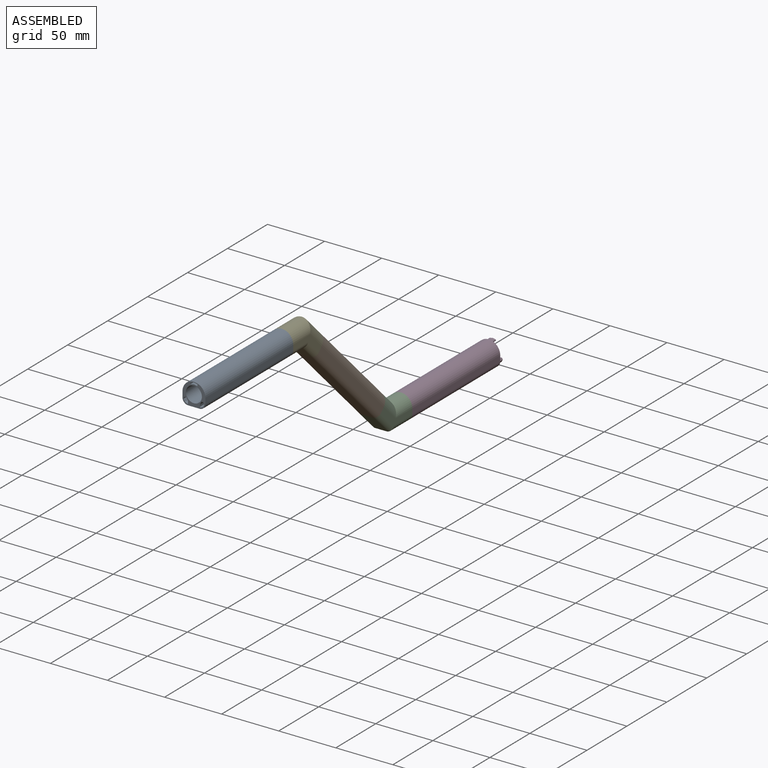
[diagram: assembled view]
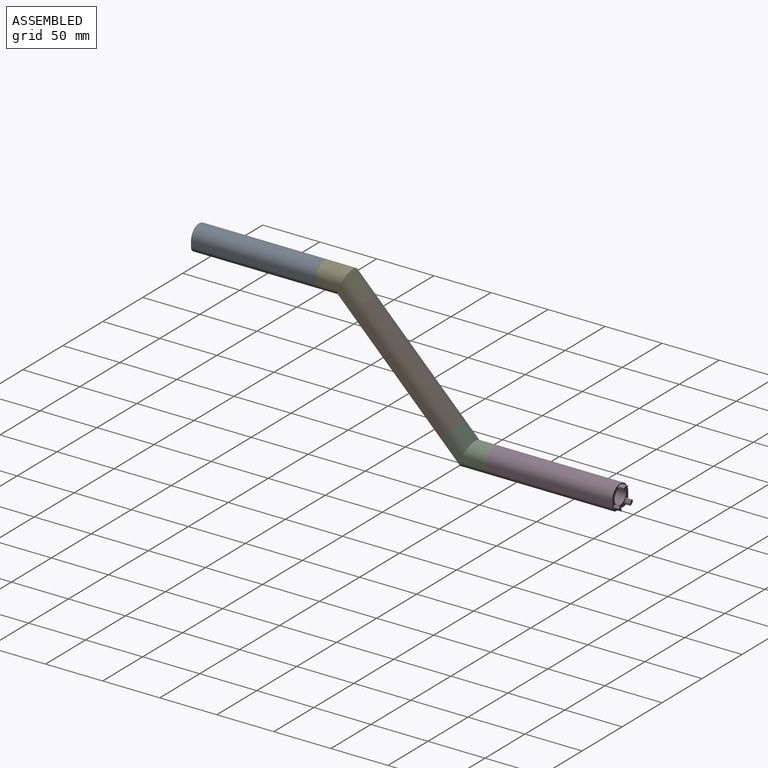
[diagram: assembled view, second angle]
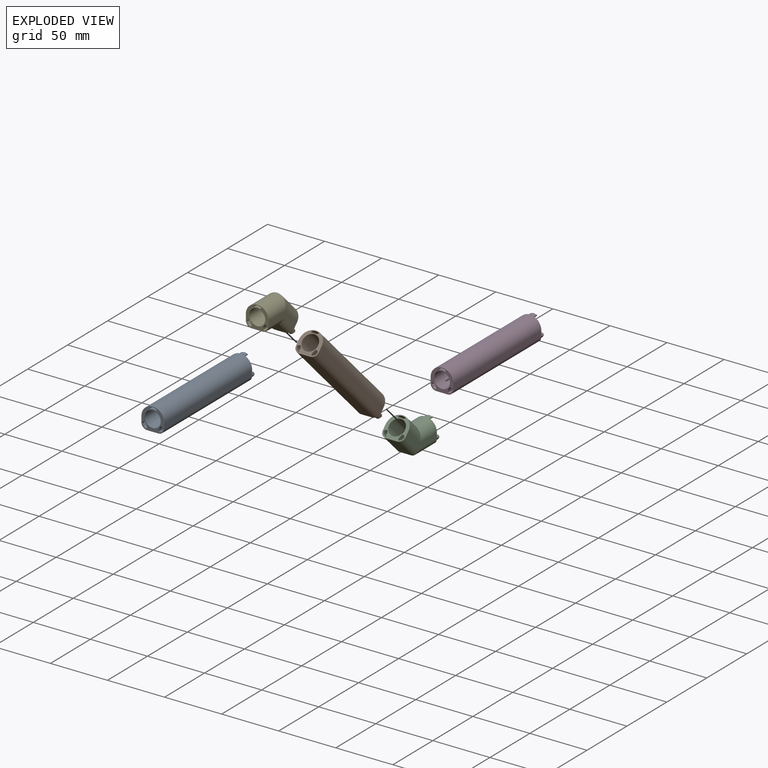
[diagram: exploded view]
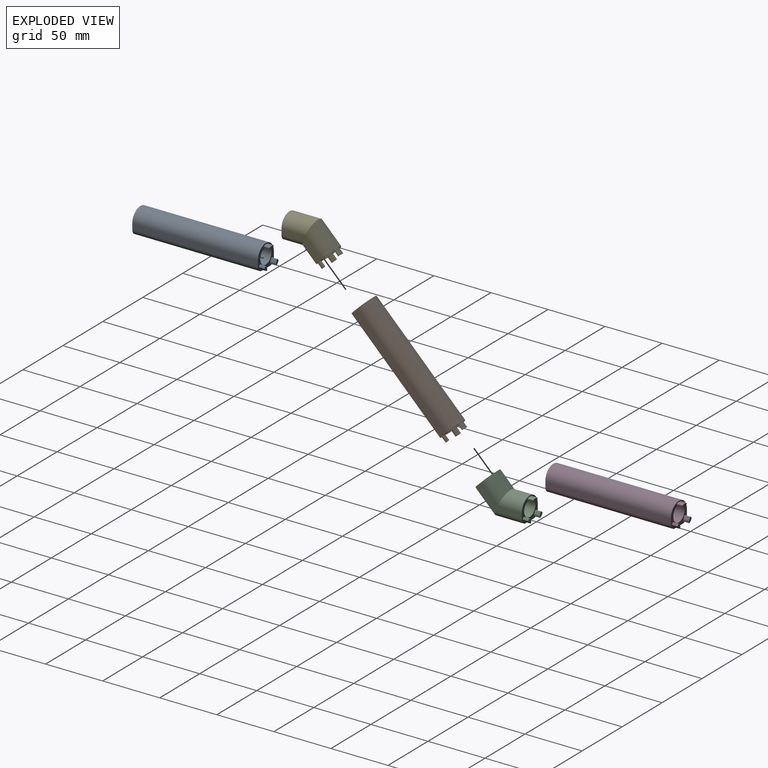
[diagram: exploded view, second angle]
ASSEMBLY  parts=5 mates=4
PART A: 59 faces, bbox 20x115x20 mm
  f0: plane 20x20mm, normal (0,1,0), area 169.7mm2, adj f2,f3,f4,f5,f6,f7,f8,f34
  f1: plane 20x20mm, normal (0,-1,0), area 157.8mm2, adj f2,f3,f4,f5,f6,f7,f8,f9
  f2: plane 110x5mm, normal (-1,0,0), area 550mm2, adj f0,f1,f5,f7
  f3: plane 110x10mm, normal (0,0,-1), area 1100mm2, adj f0,f1,f7,f8
  f4: plane 110x5mm, normal (1,0,0), area 550mm2, adj f0,f1,f5,f8
  f5: cylinder r=10mm len=110mm, axis (0,1,0), area 3455.8mm2, adj f0,f1,f2,f4
  f6: cylinder r=7mm len=110mm, axis (0,1,0), area 4838.1mm2, adj f0,f1
  f7: cylinder r=5mm len=110mm, axis (0,1,0), area 863.9mm2, adj f0,f1,f2,f3
  f8: cylinder r=5mm len=110mm, axis (0,-1,0), area 863.9mm2, adj f0,f1,f3,f4
  f9: cylinder r=0.62mm len=5mm, axis (0,-1,0), area 1.4mm2, adj f1,f10,f16,f17
  f10: plane 5x2.86mm, normal (0.22,0,0.98), area 14.7mm2, adj f1,f9,f11,f17
  f11: plane 5x1.5mm, normal (-1,0,0), area 7.5mm2, adj f1,f10,f12,f17
  f12: plane 5x2.86mm, normal (-0.22,0,-0.98), area 14.7mm2, adj f1,f11,f13,f17
  f13: cylinder r=0.62mm len=5mm, axis (0,-1,0), area 1.4mm2, adj f1,f12,f14,f17
  f14: plane 5x2.86mm, normal (0.22,0,-0.98), area 14.7mm2, adj f1,f13,f15,f17
  f15: plane 5x1.5mm, normal (1,0,0), area 7.5mm2, adj f1,f14,f16,f17
  f16: plane 5x2.86mm, normal (-0.22,0,0.98), area 14.7mm2, adj f1,f9,f15,f17
  f17: plane 6x2.16mm, normal (0,-1,0), area 9mm2, adj f9,f10,f11,f12,f13,f14,f15,f16
  f18: plane 5x1.79mm, normal (-0.45,0,0.89), area 10mm2, adj f1,f19,f24,f25
  f19: plane 5x2.17mm, normal (-0.87,0,0.5), area 12.5mm2, adj f1,f18,f20,f25
  f20: plane 5x1.69mm, normal (-0.88,0,-0.48), area 9.7mm2, adj f1,f19,f21,f25
  f21: plane 5x1.68mm, normal (0,0,-1), area 8.4mm2, adj f1,f20,f22,f25
  f22: plane 5x2.7mm, normal (0.9,0,-0.44), area 15mm2, adj f1,f21,f23,f25
  f23: plane 5x1.5mm, normal (1,0,0), area 7.5mm2, adj f1,f22,f24,f25
  f24: cylinder r=0.62mm len=5mm, axis (0,-1,0), area 6.3mm2, adj f1,f18,f23,f25
  f25: plane 4.82x3.93mm, normal (0,-1,0), area 12.8mm2, adj f18,f19,f20,f21,f22,f23,f24
  f26: plane 5x1.69mm, normal (0.88,0,-0.48), area 9.7mm2, adj f1,f27,f32,f33
  f27: plane 5x2.17mm, normal (0.87,0,0.5), area 12.5mm2, adj f1,f26,f28,f33
  f28: plane 5x1.79mm, normal (0.45,0,0.89), area 10mm2, adj f1,f27,f29,f33
  f29: cylinder r=0.62mm len=5mm, axis (0,-1,0), area 6.3mm2, adj f1,f28,f30,f33
  f30: plane 5x1.5mm, normal (-1,0,0), area 7.5mm2, adj f1,f29,f31,f33
  f31: plane 5x2.7mm, normal (-0.9,0,-0.44), area 15mm2, adj f1,f30,f32,f33
  f32: plane 5x1.68mm, normal (0,0,-1), area 8.4mm2, adj f1,f26,f31,f33
  f33: plane 4.82x3.93mm, normal (0,-1,0), area 12.8mm2, adj f26,f27,f28,f29,f30,f31,f32
  f34: plane 5x1.71mm, normal (0.45,0,-0.89), area 9.6mm2, adj f0,f35,f40,f41
  f35: cylinder r=0.32mm len=5mm, axis (0,-1,0), area 3.2mm2, adj f0,f34,f36,f41
  f36: plane 5x1.43mm, normal (-1,0,0), area 7.2mm2, adj f0,f35,f37,f41
  f37: plane 5x2.47mm, normal (-0.9,0,0.44), area 13.7mm2, adj f0,f36,f38,f41
  f38: plane 5x1.32mm, normal (0,0,1), area 6.6mm2, adj f0,f37,f39,f41
  f39: plane 5x1.39mm, normal (0.88,0,0.48), area 7.9mm2, adj f0,f38,f40,f41
  f40: plane 5x1.94mm, normal (0.87,0,-0.5), area 11.2mm2, adj f0,f34,f39,f41
  f41: plane 4.22x3.29mm, normal (0,1,0), area 9mm2, adj f34,f35,f36,f37,f38,f39,f40
  f42: plane 5x1.39mm, normal (-0.88,0,0.48), area 7.9mm2, adj f0,f43,f48,f49
  f43: plane 5x1.32mm, normal (0,0,1), area 6.6mm2, adj f0,f42,f44,f49
  f44: plane 5x2.47mm, normal (0.9,0,0.44), area 13.7mm2, adj f0,f43,f45,f49
  f45: plane 5x1.43mm, normal (1,0,0), area 7.2mm2, adj f0,f44,f46,f49
  f46: cylinder r=0.32mm len=5mm, axis (0,-1,0), area 3.2mm2, adj f0,f45,f47,f49
  f47: plane 5x1.71mm, normal (-0.45,0,-0.89), area 9.6mm2, adj f0,f46,f48,f49
  f48: plane 5x1.94mm, normal (-0.87,0,-0.5), area 11.2mm2, adj f0,f42,f47,f49
  f49: plane 4.22x3.29mm, normal (0,1,0), area 9mm2, adj f42,f43,f44,f45,f46,f47,f48
  f50: plane 5x2.5mm, normal (0.22,0,-0.98), area 12.8mm2, adj f0,f51,f57,f58
  f51: plane 5x0.89mm, normal (-1,0,0), area 4.4mm2, adj f0,f50,f52,f58
  f52: plane 5x2.63mm, normal (-0.22,0,0.98), area 13.5mm2, adj f0,f51,f53,f58
  f53: cylinder r=0.32mm len=5mm, axis (0,-1,0), area 0.7mm2, adj f0,f52,f54,f58
  f54: plane 5x2.63mm, normal (0.22,0,0.98), area 13.5mm2, adj f0,f53,f55,f58
  f55: plane 5x0.89mm, normal (1,0,0), area 4.4mm2, adj f0,f54,f56,f58
  f56: plane 5x2.5mm, normal (-0.22,0,-0.98), area 12.8mm2, adj f0,f55,f57,f58
  f57: cylinder r=0.92mm len=5mm, axis (0,-1,0), area 2mm2, adj f0,f50,f56,f58
  f58: plane 5.4x1.49mm, normal (0,1,0), area 4.8mm2, adj f50,f51,f52,f53,f54,f55,f56,f57
PART B: same geometry as A
PART C: 64 faces, bbox 20x45.2x34.8 mm
  f0: plane 20x14.14mm, normal (0,-0.71,0.71), area 169.7mm2, adj f2,f4,f5,f7,f9,f11,f12,f39
  f1: plane 20x20mm, normal (0,1,0), area 157.7mm2, adj f3,f4,f5,f6,f8,f10,f13,f14
  f2: plane 17.68x17.68mm, normal (0,-0.71,-0.71), area 250mm2, adj f0,f3,f7,f9
  f3: plane 25x10mm, normal (0,0,-1), area 250mm2, adj f1,f2,f6,f8
  f4: plane 39.14x19.75mm, normal (1,0,0), area 218.9mm2, adj f0,f1,f8,f9,f10,f11
  f5: plane 39.14x19.75mm, normal (-1,0,0), area 218.9mm2, adj f0,f1,f6,f7,f10,f11
  f6: cylinder r=5mm len=25mm, axis (0,1,0), area 190.4mm2, adj f1,f3,f5,f7
  f7: cylinder r=5mm len=21.21mm, axis (0,0.71,-0.71), area 190.4mm2, adj f0,f2,f5,f6
  f8: cylinder r=5mm len=25mm, axis (0,-1,0), area 190.4mm2, adj f1,f3,f4,f9
  f9: cylinder r=5mm len=21.21mm, axis (0,-0.71,0.71), area 190.4mm2, adj f0,f2,f4,f8
  f10: cylinder r=10mm len=20.86mm, axis (0,1,0), area 572.4mm2, adj f1,f4,f5,f11
  f11: cylinder r=10mm len=21.82mm, axis (0,0.71,-0.71), area 572.4mm2, adj f0,f4,f5,f10
  f12: cylinder r=7mm len=26.73mm, axis (0,0.71,-0.71), area 917.4mm2, adj f0,f13
  f13: cylinder r=7mm len=23.8mm, axis (0,1,0), area 917.4mm2, adj f1,f12
  f14: plane 5x1.5mm, normal (-1,0,0), area 7.5mm2, adj f1,f15,f21,f22
  f15: plane 5x2.88mm, normal (0.22,0,0.98), area 14.8mm2, adj f1,f14,f16,f22
  f16: cylinder r=0.62mm len=5mm, axis (0,1,0), area 1.4mm2, adj f1,f15,f17,f22
  f17: plane 5x2.88mm, normal (-0.22,0,0.98), area 14.8mm2, adj f1,f16,f18,f22
  f18: plane 5x1.5mm, normal (1,0,0), area 7.5mm2, adj f1,f17,f19,f22
  f19: plane 5x2.88mm, normal (0.22,0,-0.98), area 14.8mm2, adj f1,f18,f20,f22
  f20: cylinder r=0.62mm len=5mm, axis (0,1,0), area 1.4mm2, adj f1,f19,f21,f22
  f21: plane 5x2.88mm, normal (-0.22,0,-0.98), area 14.8mm2, adj f1,f14,f20,f22
  f22: plane 6.04x2.16mm, normal (0,1,0), area 9.1mm2, adj f14,f15,f16,f17,f18,f19,f20,f21
  f23: plane 5x1.5mm, normal (1,0,0), area 7.5mm2, adj f1,f24,f29,f30
  f24: plane 5x2.7mm, normal (0.9,0,-0.44), area 15mm2, adj f1,f23,f25,f30
  f25: plane 5x1.68mm, normal (0,0,-1), area 8.4mm2, adj f1,f24,f26,f30
  f26: plane 5x1.69mm, normal (-0.88,0,-0.48), area 9.7mm2, adj f1,f25,f27,f30
  f27: plane 5x2.17mm, normal (-0.87,0,0.5), area 12.5mm2, adj f1,f26,f28,f30
  f28: plane 5x1.79mm, normal (-0.45,0,0.89), area 10mm2, adj f1,f27,f29,f30
  f29: cylinder r=0.62mm len=5mm, axis (0,1,0), area 6.3mm2, adj f1,f23,f28,f30
  f30: plane 4.82x3.93mm, normal (0,1,0), area 12.8mm2, adj f23,f24,f25,f26,f27,f28,f29
  f31: plane 5x1.68mm, normal (0,0,-1), area 8.4mm2, adj f1,f32,f37,f38
  f32: plane 5x2.7mm, normal (-0.9,0,-0.44), area 15mm2, adj f1,f31,f33,f38
  f33: plane 5x1.5mm, normal (-1,0,0), area 7.5mm2, adj f1,f32,f34,f38
  f34: cylinder r=0.62mm len=5mm, axis (0,1,0), area 6.3mm2, adj f1,f33,f35,f38
  f35: plane 5x1.79mm, normal (0.45,0,0.89), area 10mm2, adj f1,f34,f36,f38
  f36: plane 5x2.17mm, normal (0.87,0,0.5), area 12.5mm2, adj f1,f35,f37,f38
  f37: plane 5x1.69mm, normal (0.88,0,-0.48), area 9.7mm2, adj f1,f31,f36,f38
  f38: plane 4.82x3.93mm, normal (0,1,0), area 12.8mm2, adj f31,f32,f33,f34,f35,f36,f37
  f39: plane 4.14x4.14mm, normal (-0.45,-0.63,-0.63), area 9.6mm2, adj f0,f40,f45,f46
  f40: cylinder r=0.32mm len=3.76mm, axis (0,0.71,-0.71), area 3.2mm2, adj f0,f39,f41,f46
  f41: plane 4.55x4.55mm, normal (1,0,0), area 7.2mm2, adj f0,f40,f42,f46
  f42: plane 5.28x5.28mm, normal (0.9,0.31,0.31), area 13.7mm2, adj f0,f41,f43,f46
  f43: plane 3.54x3.54mm, normal (0,0.71,0.71), area 6.6mm2, adj f0,f42,f44,f46
  f44: plane 4.52x4.52mm, normal (-0.88,0.34,0.34), area 7.9mm2, adj f0,f43,f45,f46
  f45: plane 4.91x4.91mm, normal (-0.87,-0.35,-0.35), area 11.2mm2, adj f0,f39,f44,f46
  f46: plane 3.29x2.98mm, normal (0,-0.71,0.71), area 9mm2, adj f39,f40,f41,f42,f43,f44,f45
  f47: plane 4.52x4.52mm, normal (0.88,0.34,0.34), area 7.9mm2, adj f0,f48,f53,f54
  f48: plane 3.54x3.54mm, normal (0,0.71,0.71), area 6.6mm2, adj f0,f47,f49,f54
  f49: plane 5.28x5.28mm, normal (-0.9,0.31,0.31), area 13.7mm2, adj f0,f48,f50,f54
  f50: plane 4.55x4.55mm, normal (-1,0,0), area 7.2mm2, adj f0,f49,f51,f54
  f51: cylinder r=0.32mm len=3.76mm, axis (0,0.71,-0.71), area 3.2mm2, adj f0,f50,f52,f54
  f52: plane 4.14x4.14mm, normal (0.45,-0.63,-0.63), area 9.6mm2, adj f0,f51,f53,f54
  f53: plane 4.91x4.91mm, normal (0.87,-0.35,-0.35), area 11.2mm2, adj f0,f47,f52,f54
  f54: plane 3.29x2.98mm, normal (0,-0.71,0.71), area 9mm2, adj f47,f48,f49,f50,f51,f52,f53
  f55: plane 3.93x3.93mm, normal (-0.22,-0.69,-0.69), area 12.8mm2, adj f0,f56,f62,f63
  f56: plane 4.16x4.16mm, normal (1,0,0), area 4.4mm2, adj f0,f55,f57,f63
  f57: plane 3.95x3.95mm, normal (0.22,0.69,0.69), area 13.5mm2, adj f0,f56,f58,f63
  f58: cylinder r=0.32mm len=3.54mm, axis (0,0.71,-0.71), area 0.7mm2, adj f0,f57,f59,f63
  f59: plane 3.95x3.95mm, normal (-0.22,0.69,0.69), area 13.5mm2, adj f0,f58,f60,f63
  f60: plane 4.16x4.16mm, normal (-1,0,0), area 4.4mm2, adj f0,f59,f61,f63
  f61: plane 3.93x3.93mm, normal (0.22,-0.69,-0.69), area 12.8mm2, adj f0,f60,f62,f63
  f62: cylinder r=0.92mm len=3.55mm, axis (0,0.71,-0.71), area 2mm2, adj f0,f55,f61,f63
  f63: plane 5.4x1.05mm, normal (0,-0.71,0.71), area 4.8mm2, adj f55,f56,f57,f58,f59,f60,f61,f62
PART D: same geometry as A
PART E: 64 faces, bbox 20x45.6x34.4 mm
  f0: plane 20x14.14mm, normal (0,-0.71,0.71), area 169.7mm2, adj f3,f4,f5,f7,f9,f11,f12,f39
  f1: plane 20x20mm, normal (0,1,0), area 157.7mm2, adj f2,f4,f5,f6,f8,f10,f13,f14
  f2: plane 16.72x10mm, normal (0,0,1), area 167.2mm2, adj f1,f3,f8,f10
  f3: plane 11.82x11.82mm, normal (0,0.71,0.71), area 167.2mm2, adj f0,f2,f9,f11
  f4: plane 35.61x18.28mm, normal (1,0,0), area 198.2mm2, adj f0,f1,f6,f7,f10,f11
  f5: plane 35.61x18.28mm, normal (-1,0,0), area 198.2mm2, adj f0,f1,f6,f7,f8,f9
  f6: cylinder r=10mm len=25.01mm, axis (0,-1,0), area 738.1mm2, adj f1,f4,f5,f7
  f7: cylinder r=10mm len=24.76mm, axis (0,-0.71,0.71), area 738.1mm2, adj f0,f4,f5,f6
  f8: cylinder r=5mm len=18.79mm, axis (0,-1,0), area 137.2mm2, adj f1,f2,f5,f9
  f9: cylinder r=5mm len=16.82mm, axis (0,-0.71,0.71), area 137.2mm2, adj f0,f3,f5,f8
  f10: cylinder r=5mm len=18.79mm, axis (0,1,0), area 137.2mm2, adj f1,f2,f4,f11
  f11: cylinder r=5mm len=16.82mm, axis (0,0.71,-0.71), area 137.2mm2, adj f0,f3,f4,f10
  f12: cylinder r=7mm len=26.73mm, axis (0,0.71,-0.71), area 917.4mm2, adj f0,f13
  f13: cylinder r=7mm len=23.8mm, axis (0,1,0), area 917.4mm2, adj f1,f12
  f14: plane 5x1.68mm, normal (0,0,1), area 8.4mm2, adj f1,f15,f20,f21
  f15: plane 5x2.7mm, normal (0.9,0,0.44), area 15mm2, adj f1,f14,f16,f21
  f16: plane 5x1.5mm, normal (1,0,0), area 7.5mm2, adj f1,f15,f17,f21
  f17: cylinder r=0.62mm len=5mm, axis (0,1,0), area 6.3mm2, adj f1,f16,f18,f21
  f18: plane 5x1.79mm, normal (-0.45,0,-0.89), area 10mm2, adj f1,f17,f19,f21
  f19: plane 5x2.17mm, normal (-0.87,0,-0.5), area 12.5mm2, adj f1,f18,f20,f21
  f20: plane 5x1.69mm, normal (-0.88,0,0.48), area 9.7mm2, adj f1,f14,f19,f21
  f21: plane 4.82x3.93mm, normal (0,1,0), area 12.8mm2, adj f14,f15,f16,f17,f18,f19,f20
  f22: plane 5x1.5mm, normal (-1,0,0), area 7.5mm2, adj f1,f23,f28,f29
  f23: plane 5x2.7mm, normal (-0.9,0,0.44), area 15mm2, adj f1,f22,f24,f29
  f24: plane 5x1.68mm, normal (0,0,1), area 8.4mm2, adj f1,f23,f25,f29
  f25: plane 5x1.69mm, normal (0.88,0,0.48), area 9.7mm2, adj f1,f24,f26,f29
  f26: plane 5x2.17mm, normal (0.87,0,-0.5), area 12.5mm2, adj f1,f25,f27,f29
  f27: plane 5x1.79mm, normal (0.45,0,-0.89), area 10mm2, adj f1,f26,f28,f29
  f28: cylinder r=0.62mm len=5mm, axis (0,1,0), area 6.3mm2, adj f1,f22,f27,f29
  f29: plane 4.82x3.93mm, normal (0,1,0), area 12.8mm2, adj f22,f23,f24,f25,f26,f27,f28
  f30: plane 5x1.5mm, normal (1,0,0), area 7.5mm2, adj f1,f31,f37,f38
  f31: plane 5x2.88mm, normal (-0.22,0,-0.98), area 14.8mm2, adj f1,f30,f32,f38
  f32: cylinder r=0.62mm len=5mm, axis (0,1,0), area 1.4mm2, adj f1,f31,f33,f38
  f33: plane 5x2.88mm, normal (0.22,0,-0.98), area 14.8mm2, adj f1,f32,f34,f38
  f34: plane 5x1.5mm, normal (-1,0,0), area 7.5mm2, adj f1,f33,f35,f38
  f35: plane 5x2.88mm, normal (-0.22,0,0.98), area 14.8mm2, adj f1,f34,f36,f38
  f36: cylinder r=0.62mm len=5mm, axis (0,1,0), area 1.4mm2, adj f1,f35,f37,f38
  f37: plane 5x2.88mm, normal (0.22,0,0.98), area 14.8mm2, adj f1,f30,f36,f38
  f38: plane 6.04x2.16mm, normal (0,1,0), area 9.1mm2, adj f30,f31,f32,f33,f34,f35,f36,f37
  f39: plane 4.14x4.14mm, normal (0.45,0.63,0.63), area 9.6mm2, adj f0,f40,f45,f46
  f40: cylinder r=0.32mm len=3.76mm, axis (0,0.71,-0.71), area 3.2mm2, adj f0,f39,f41,f46
  f41: plane 4.55x4.55mm, normal (-1,0,0), area 7.2mm2, adj f0,f40,f42,f46
  f42: plane 5.28x5.28mm, normal (-0.9,-0.31,-0.31), area 13.7mm2, adj f0,f41,f43,f46
  f43: plane 3.54x3.54mm, normal (0,-0.71,-0.71), area 6.6mm2, adj f0,f42,f44,f46
  f44: plane 4.52x4.52mm, normal (0.88,-0.34,-0.34), area 7.9mm2, adj f0,f43,f45,f46
  f45: plane 4.91x4.91mm, normal (0.87,0.35,0.35), area 11.2mm2, adj f0,f39,f44,f46
  f46: plane 3.29x2.98mm, normal (0,-0.71,0.71), area 9mm2, adj f39,f40,f41,f42,f43,f44,f45
  f47: plane 4.52x4.52mm, normal (-0.88,-0.34,-0.34), area 7.9mm2, adj f0,f48,f53,f54
  f48: plane 3.54x3.54mm, normal (0,-0.71,-0.71), area 6.6mm2, adj f0,f47,f49,f54
  f49: plane 5.28x5.28mm, normal (0.9,-0.31,-0.31), area 13.7mm2, adj f0,f48,f50,f54
  f50: plane 4.55x4.55mm, normal (1,0,0), area 7.2mm2, adj f0,f49,f51,f54
  f51: cylinder r=0.32mm len=3.76mm, axis (0,0.71,-0.71), area 3.2mm2, adj f0,f50,f52,f54
  f52: plane 4.14x4.14mm, normal (-0.45,0.63,0.63), area 9.6mm2, adj f0,f51,f53,f54
  f53: plane 4.91x4.91mm, normal (-0.87,0.35,0.35), area 11.2mm2, adj f0,f47,f52,f54
  f54: plane 3.29x2.98mm, normal (0,-0.71,0.71), area 9mm2, adj f47,f48,f49,f50,f51,f52,f53
  f55: plane 3.93x3.93mm, normal (0.22,0.69,0.69), area 12.8mm2, adj f0,f56,f62,f63
  f56: plane 4.16x4.16mm, normal (-1,0,0), area 4.4mm2, adj f0,f55,f57,f63
  f57: plane 3.95x3.95mm, normal (-0.22,-0.69,-0.69), area 13.5mm2, adj f0,f56,f58,f63
  f58: cylinder r=0.32mm len=3.54mm, axis (0,0.71,-0.71), area 0.7mm2, adj f0,f57,f59,f63
  f59: plane 3.95x3.95mm, normal (0.22,-0.69,-0.69), area 13.5mm2, adj f0,f58,f60,f63
  f60: plane 4.16x4.16mm, normal (1,0,0), area 4.4mm2, adj f0,f59,f61,f63
  f61: plane 3.93x3.93mm, normal (-0.22,0.69,0.69), area 12.8mm2, adj f0,f60,f62,f63
  f62: cylinder r=0.92mm len=3.55mm, axis (0,0.71,-0.71), area 2mm2, adj f0,f55,f61,f63
  f63: plane 5.4x1.05mm, normal (0,-0.71,0.71), area 4.8mm2, adj f55,f56,f57,f58,f59,f60,f61,f62
PLACE A t=(-38.16,22.64,-11.74)mm
PLACE B rot(axis=(-1,0,0),45deg) t=(-38.16,136.03,-104.27)mm
PLACE C rot(axis=(0,0.38,0.92),180deg) t=(-38.16,143.1,-97.2)mm
PLACE D t=(-38.16,281.64,-119.02)mm
PLACE E rot(axis=(1,0,0),180deg) t=(-38.16,22.64,-21.74)mm
MATE fastened B.f6 <-> E.f7  axis (0,0.71,-0.71) through (-38.16,58.25,-26.49)mm
MATE fastened D.f6 <-> C.f11  axis (0,1,0) through (-38.16,171.64,-119.02)mm
MATE fastened E.f13 <-> A.f6  axis (0,-1,0) through (-38.16,22.64,-11.74)mm
MATE fastened C.f10 <-> B.f6  axis (0,-0.71,0.71) through (-38.16,136.03,-104.27)mm
